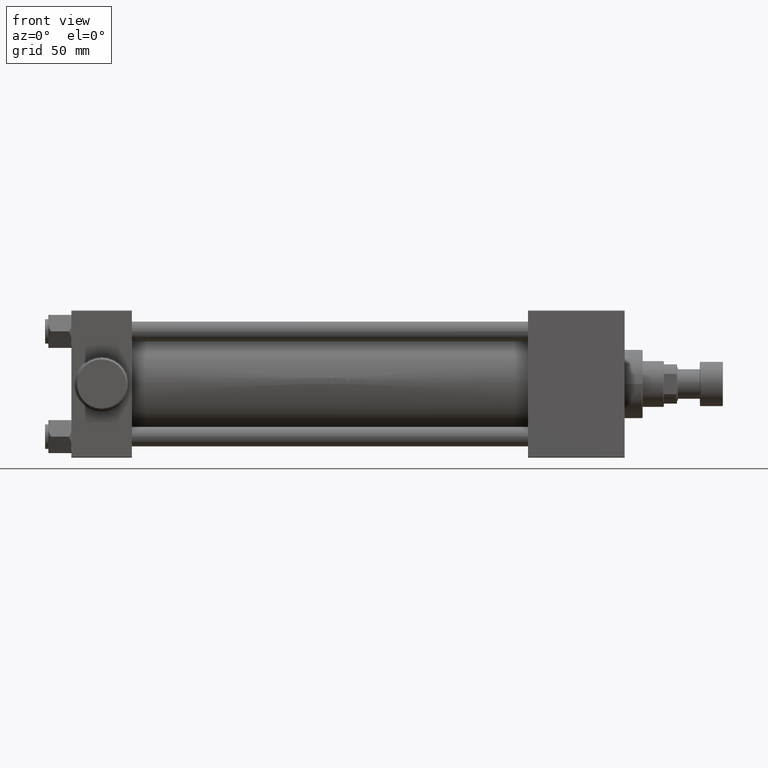
[diagram: clean part render]
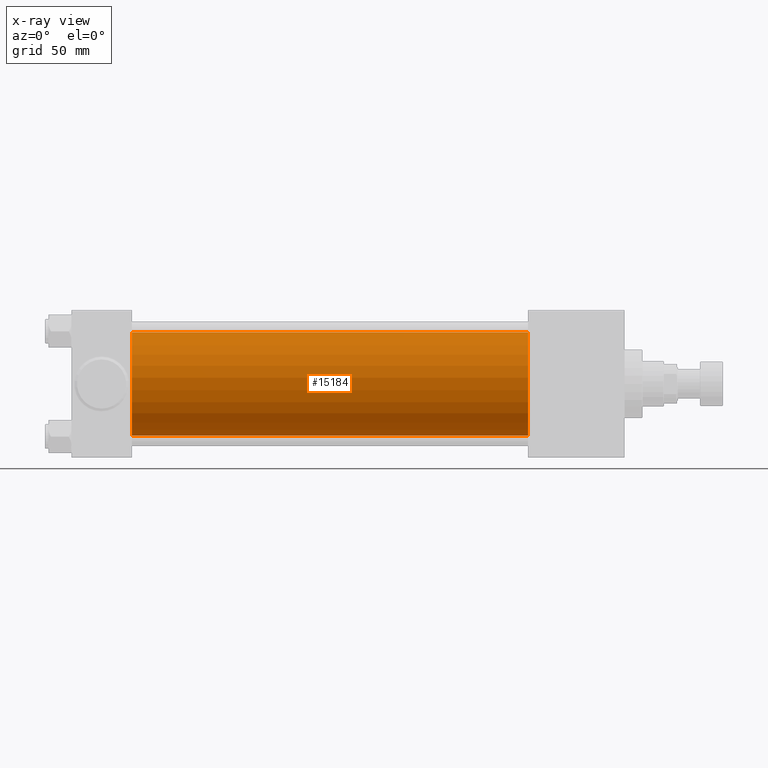
[diagram: x-ray — body ghosted, one internal face saturated and labeled with its STEP entity id]
A machine part, front view, then the same camera in x-ray: the body is ghosted and one INTERNAL B-rep face — a face not visible from any outside direction — is saturated and labeled: STEP entity #15184.
In plain terms, the highlighted cylindrical surface (partial cylindrical patch) has radius 31.5 mm, axis along (-1, -0, -0).
Its self-contained STEP definition (entity closure, byte-faithful):
#294 = DIRECTION ( 'NONE',  ( 0.000000000000000000, 0.000000000000000000, -1.000000000000000000 ) ) ;
#1009 = EDGE_CURVE ( 'NONE', #37963, #27858, #29173, .T. ) ;
#2779 = EDGE_LOOP ( 'NONE', ( #16900, #12638, #36424, #12731 ) ) ;
#3359 = EDGE_CURVE ( 'NONE', #37158, #31556, #39072, .T. ) ;
#6375 = DIRECTION ( 'NONE',  ( 1.000000000000000000, 0.000000000000000000, 0.000000000000000000 ) ) ;
#7145 = CARTESIAN_POINT ( 'NONE',  ( 37.00000000000000000, -3.469446951953614189E-15, 31.50000000000000000 ) ) ;
#7277 = DIRECTION ( 'NONE',  ( -1.000000000000000000, -0.000000000000000000, -0.000000000000000000 ) ) ;
#12638 = ORIENTED_EDGE ( 'NONE', *, *, #43614, .T. ) ;
#12731 = ORIENTED_EDGE ( 'NONE', *, *, #28585, .F. ) ;
#13197 = CARTESIAN_POINT ( 'NONE',  ( 278.9999999999999432, -3.469446951953614189E-15, 31.50000000000000000 ) ) ;
#13271 = VECTOR ( 'NONE', #7277, 1000.000000000000000 ) ;
#13885 = FACE_OUTER_BOUND ( 'NONE', #2779, .T. ) ;
#13902 = CARTESIAN_POINT ( 'NONE',  ( 37.00000000000000000, -3.469446951953614189E-15, 0.000000000000000000 ) ) ;
#15184 = ADVANCED_FACE ( 'NONE', ( #13885 ), #35392, .F. ) ;
#16900 = ORIENTED_EDGE ( 'NONE', *, *, #1009, .T. ) ;
#16980 = LINE ( 'NONE', #13197, #22025 ) ;
#17423 = AXIS2_PLACEMENT_3D ( 'NONE', #46281, #29691, #33004 ) ;
#18486 = CARTESIAN_POINT ( 'NONE',  ( 278.9999999999999432, -3.469446951953614189E-15, 0.000000000000000000 ) ) ;
#18686 = AXIS2_PLACEMENT_3D ( 'NONE', #13902, #6375, #20286 ) ;
#20286 = DIRECTION ( 'NONE',  ( 0.000000000000000000, 0.000000000000000000, -1.000000000000000000 ) ) ;
#22025 = VECTOR ( 'NONE', #46525, 1000.000000000000000 ) ;
#23749 = CARTESIAN_POINT ( 'NONE',  ( 278.9999999999999432, -3.469446951953614189E-15, 31.50000000000000000 ) ) ;
#27606 = CARTESIAN_POINT ( 'NONE',  ( 278.9999999999999432, 3.881904653605483521E-16, -31.50000000000000000 ) ) ;
#27858 = VERTEX_POINT ( 'NONE', #27606 ) ;
#28585 = EDGE_CURVE ( 'NONE', #37963, #37158, #16980, .T. ) ;
#29173 = CIRCLE ( 'NONE', #34468, 31.50000000000000000 ) ;
#29691 = DIRECTION ( 'NONE',  ( -1.000000000000000000, -0.000000000000000000, -0.000000000000000000 ) ) ;
#31556 = VERTEX_POINT ( 'NONE', #32107 ) ;
#32107 = CARTESIAN_POINT ( 'NONE',  ( 37.00000000000000000, 3.881904653605483521E-16, -31.50000000000000000 ) ) ;
#33004 = DIRECTION ( 'NONE',  ( 0.000000000000000000, 0.000000000000000000, 1.000000000000000000 ) ) ;
#34468 = AXIS2_PLACEMENT_3D ( 'NONE', #18486, #39766, #294 ) ;
#35392 = CYLINDRICAL_SURFACE ( 'NONE', #17423, 31.50000000000000000 ) ;
#36325 = CARTESIAN_POINT ( 'NONE',  ( 278.9999999999999432, 3.881904653605483521E-16, -31.50000000000000000 ) ) ;
#36424 = ORIENTED_EDGE ( 'NONE', *, *, #3359, .F. ) ;
#37158 = VERTEX_POINT ( 'NONE', #7145 ) ;
#37963 = VERTEX_POINT ( 'NONE', #23749 ) ;
#39072 = CIRCLE ( 'NONE', #18686, 31.50000000000000000 ) ;
#39766 = DIRECTION ( 'NONE',  ( 1.000000000000000000, 0.000000000000000000, 0.000000000000000000 ) ) ;
#43614 = EDGE_CURVE ( 'NONE', #27858, #31556, #44141, .T. ) ;
#44141 = LINE ( 'NONE', #36325, #13271 ) ;
#46281 = CARTESIAN_POINT ( 'NONE',  ( 278.9999999999999432, -3.469446951953614189E-15, 0.000000000000000000 ) ) ;
#46525 = DIRECTION ( 'NONE',  ( -1.000000000000000000, -0.000000000000000000, -0.000000000000000000 ) ) ;